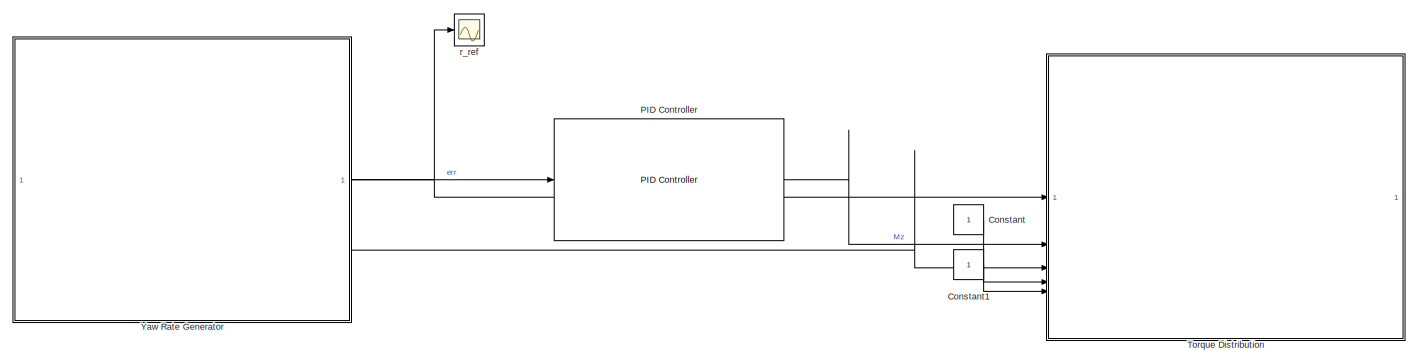
[diagram: root canvas - part 1/3, full width, top band]
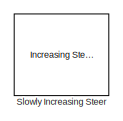
[diagram: root canvas - part 2/3, top left region]
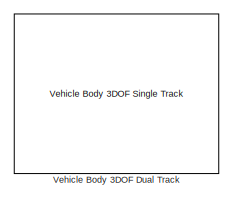
[diagram: root canvas - part 3/3, bottom left region]
MODEL slx_e92ca60e5d35
KIND model
CONFIG AbsTol = auto
CONFIG EnableMultiTasking = off
CONFIG FixedStep = auto
CONFIG MaxStep = auto
CONFIG MinStep = auto
CONFIG RelTol = 1e-3
CONFIG SampleTimeConstraint = Unconstrained
CONFIG SolverName = VariableStepAuto
CONFIG StartTime = 0.0
CONFIG StopTime = 10.0
BLOCK [Constant] Constant
BLOCK [Constant] Constant1
BLOCK [Reference] PID Controller  REF=slpidlib/PID Controller
  LibrarySourceBlock = simulink/Continuous/PID Controller
  SourceBlock = slpidlib/PID Controller
  SourceType = PID 1dof
BLOCK [Reference] Slowly Increasing Steer  REF=vehdynlibscenariocommon/Increasing Steer Signal Input
  LibrarySourceBlock = vehdynlibscenario/Slowly Increasing Steer
  SourceBlock = vehdynlibscenariocommon/Increasing Steer Signal Input
  SourceType = Increasing Steer
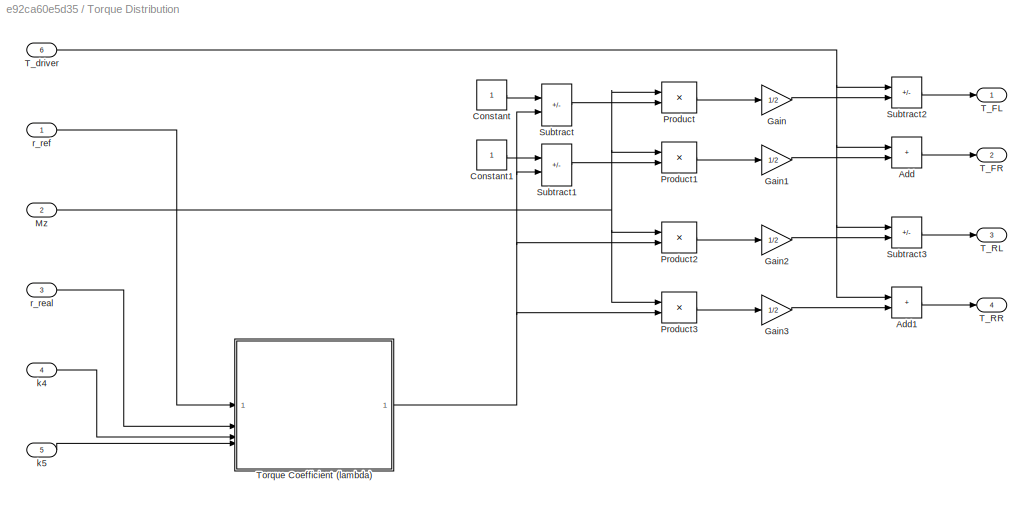
BLOCK [SubSystem] Torque Distribution
BLOCK [Sum] Torque Distribution/Add
  IconShape = rectangular
BLOCK [Sum] Torque Distribution/Add1
  IconShape = rectangular
BLOCK [Constant] Torque Distribution/Constant
BLOCK [Constant] Torque Distribution/Constant1
BLOCK [Gain] Torque Distribution/Gain
  Gain = 1/2
BLOCK [Gain] Torque Distribution/Gain1
  Gain = 1/2
BLOCK [Gain] Torque Distribution/Gain2
  Gain = 1/2
BLOCK [Gain] Torque Distribution/Gain3
  Gain = 1/2
BLOCK [Inport] Torque Distribution/Mz
  Port = 2
BLOCK [Product] Torque Distribution/Product
BLOCK [Product] Torque Distribution/Product1
BLOCK [Product] Torque Distribution/Product2
BLOCK [Product] Torque Distribution/Product3
BLOCK [Sum] Torque Distribution/Subtract
  IconShape = rectangular
  Inputs = +-
BLOCK [Sum] Torque Distribution/Subtract1
  IconShape = rectangular
  Inputs = +-
BLOCK [Sum] Torque Distribution/Subtract2
  IconShape = rectangular
  Inputs = +-
BLOCK [Sum] Torque Distribution/Subtract3
  IconShape = rectangular
  Inputs = +-
BLOCK [Outport] Torque Distribution/T_FL
BLOCK [Outport] Torque Distribution/T_FR
  Port = 2
BLOCK [Outport] Torque Distribution/T_RL
  Port = 3
BLOCK [Outport] Torque Distribution/T_RR
  Port = 4
BLOCK [Inport] Torque Distribution/T_driver
  Port = 6
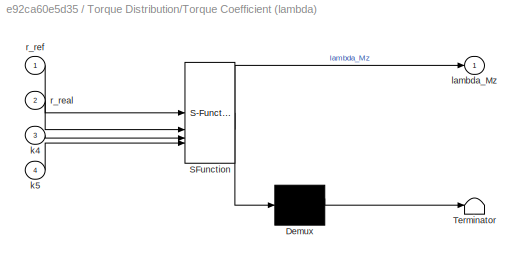
BLOCK [SubSystem] Torque Distribution/Torque Coefficient (lambda)
  ErrorFcn = Stateflow.Translate.translate
  PermitHierarchicalResolution = ExplicitOnly
  SFBlockType = MATLAB Function
  TreatAsAtomicUnit = on
BLOCK [Demux] Torque Distribution/Torque Coefficient (lambda)/ Demux 
  Outputs = 1
BLOCK [S-Function] Torque Distribution/Torque Coefficient (lambda)/ SFunction 
  EnableBusSupport = off
  FunctionName = sf_sfun
  PortCounts = [4 2]
  SFcnIsStateOwnerBlock = off
  SFunctionDeploymentMode = off
  Tag = Stateflow S-Function 3
BLOCK [Terminator] Torque Distribution/Torque Coefficient (lambda)/ Terminator 
BLOCK [Inport] Torque Distribution/Torque Coefficient (lambda)/k4
  Port = 3
BLOCK [Inport] Torque Distribution/Torque Coefficient (lambda)/k5
  Port = 4
BLOCK [Outport] Torque Distribution/Torque Coefficient (lambda)/lambda_Mz
BLOCK [Inport] Torque Distribution/Torque Coefficient (lambda)/r_real
  Port = 2
BLOCK [Inport] Torque Distribution/Torque Coefficient (lambda)/r_ref
BLOCK [Inport] Torque Distribution/k4
  Port = 4
BLOCK [Inport] Torque Distribution/k5
  Port = 5
BLOCK [Inport] Torque Distribution/r_real
  Port = 3
BLOCK [Inport] Torque Distribution/r_ref
BLOCK [Reference] Vehicle Body 3DOF Dual Track  REF=autolibshared/Vehicle Body 3DOF Single Track
  LibrarySourceBlock = vehdynlibeom/Vehicle Body 3DOF Dual Track
  SourceBlock = autolibshared/Vehicle Body 3DOF Single Track
  SourceType = Vehicle Body 3DOF Lateral
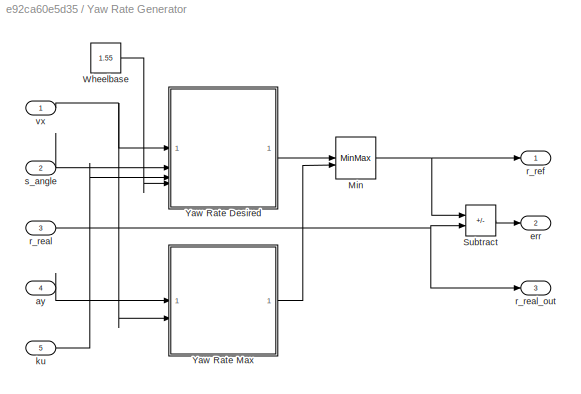
BLOCK [SubSystem] Yaw Rate Generator
BLOCK [MinMax] Yaw Rate Generator/Min
  Inputs = 2
BLOCK [Sum] Yaw Rate Generator/Subtract
  IconShape = rectangular
  Inputs = +-
BLOCK [Constant] Yaw Rate Generator/Wheelbase
  Value = 1.55
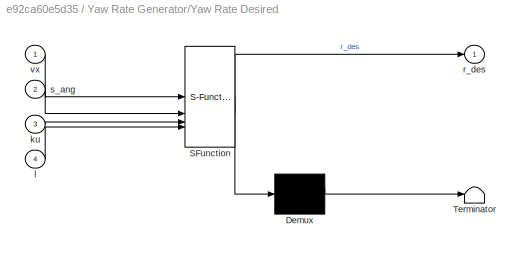
BLOCK [SubSystem] Yaw Rate Generator/Yaw Rate Desired
  ErrorFcn = Stateflow.Translate.translate
  PermitHierarchicalResolution = ExplicitOnly
  SFBlockType = MATLAB Function
  TreatAsAtomicUnit = on
BLOCK [Demux] Yaw Rate Generator/Yaw Rate Desired/ Demux 
  Outputs = 1
BLOCK [S-Function] Yaw Rate Generator/Yaw Rate Desired/ SFunction 
  EnableBusSupport = off
  FunctionName = sf_sfun
  PortCounts = [4 2]
  SFcnIsStateOwnerBlock = off
  SFunctionDeploymentMode = off
  Tag = Stateflow S-Function 2
BLOCK [Terminator] Yaw Rate Generator/Yaw Rate Desired/ Terminator 
BLOCK [Inport] Yaw Rate Generator/Yaw Rate Desired/ku
  Port = 3
BLOCK [Inport] Yaw Rate Generator/Yaw Rate Desired/l
  Port = 4
BLOCK [Outport] Yaw Rate Generator/Yaw Rate Desired/r_des
BLOCK [Inport] Yaw Rate Generator/Yaw Rate Desired/s_ang
  Port = 2
BLOCK [Inport] Yaw Rate Generator/Yaw Rate Desired/vx
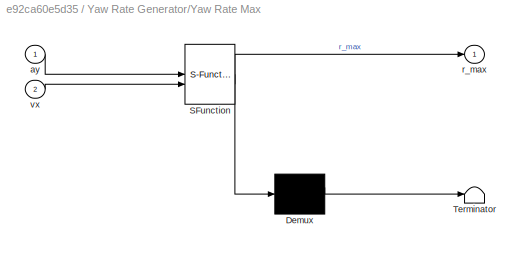
BLOCK [SubSystem] Yaw Rate Generator/Yaw Rate Max
  ErrorFcn = Stateflow.Translate.translate
  PermitHierarchicalResolution = ExplicitOnly
  SFBlockType = MATLAB Function
  TreatAsAtomicUnit = on
BLOCK [Demux] Yaw Rate Generator/Yaw Rate Max/ Demux 
  Outputs = 1
BLOCK [S-Function] Yaw Rate Generator/Yaw Rate Max/ SFunction 
  EnableBusSupport = off
  FunctionName = sf_sfun
  PortCounts = [2 2]
  SFcnIsStateOwnerBlock = off
  SFunctionDeploymentMode = off
  Tag = Stateflow S-Function 1
BLOCK [Terminator] Yaw Rate Generator/Yaw Rate Max/ Terminator 
BLOCK [Inport] Yaw Rate Generator/Yaw Rate Max/ay
BLOCK [Outport] Yaw Rate Generator/Yaw Rate Max/r_max
BLOCK [Inport] Yaw Rate Generator/Yaw Rate Max/vx
  Port = 2
BLOCK [Inport] Yaw Rate Generator/ay
  Port = 4
BLOCK [Outport] Yaw Rate Generator/err
  Port = 2
BLOCK [Inport] Yaw Rate Generator/ku
  Port = 5
BLOCK [Inport] Yaw Rate Generator/r_real
  Port = 3
BLOCK [Outport] Yaw Rate Generator/r_real_out
  Port = 3
BLOCK [Outport] Yaw Rate Generator/r_ref
BLOCK [Inport] Yaw Rate Generator/s_angle
  Port = 2
BLOCK [Inport] Yaw Rate Generator/vx
BLOCK [Scope] r_ref
  Floating = off
  NumInputPorts = 1
  ScopeSpecificationString = Simulink.scopes.TimeScopeBlockCfg('CurrentConfiguration', extmgr.ConfigurationSet(extmgr.Configuration('Core','General UI',true),extmgr.Configuration('Core','Source UI',true),extmgr.Configuration('Sources','WiredSimulink',true),extmgr.Configuration('Visuals','Time Domain',true,'SerializedDisplays',{struct('MinYLimReal','-10','MaxYLimReal','10','YLabelReal','','MinYLimMag','0','MaxYLimMag','10','Le...<+840ch>
LINE Constant1:1 -> Torque Distribution:5
LINE Constant:1 -> Torque Distribution:4
LINE PID Controller:1 -> Torque Distribution:2
LINE Torque Distribution/Add1:1 -> Torque Distribution/T_RR:1
LINE Torque Distribution/Add:1 -> Torque Distribution/T_FR:1
LINE Torque Distribution/Constant1:1 -> Torque Distribution/Subtract1:1
LINE Torque Distribution/Constant:1 -> Torque Distribution/Subtract:1
LINE Torque Distribution/Gain1:1 -> Torque Distribution/Add:2
LINE Torque Distribution/Gain2:1 -> Torque Distribution/Subtract3:2
LINE Torque Distribution/Gain3:1 -> Torque Distribution/Add1:2
LINE Torque Distribution/Gain:1 -> Torque Distribution/Subtract2:2
NET Torque Distribution/Mz:1 -> Torque Distribution/Product1:1, Torque Distribution/Product2:1, Torque Distribution/Product3:1, Torque Distribution/Product:1
LINE Torque Distribution/Product1:1 -> Torque Distribution/Gain1:1
LINE Torque Distribution/Product2:1 -> Torque Distribution/Gain2:1
LINE Torque Distribution/Product3:1 -> Torque Distribution/Gain3:1
LINE Torque Distribution/Product:1 -> Torque Distribution/Gain:1
LINE Torque Distribution/Subtract1:1 -> Torque Distribution/Product1:2
LINE Torque Distribution/Subtract2:1 -> Torque Distribution/T_FL:1
LINE Torque Distribution/Subtract3:1 -> Torque Distribution/T_RL:1
LINE Torque Distribution/Subtract:1 -> Torque Distribution/Product:2
NET Torque Distribution/T_driver:1 -> Torque Distribution/Add1:1, Torque Distribution/Add:1, Torque Distribution/Subtract2:1, Torque Distribution/Subtract3:1
NET Torque Distribution/Torque Coefficient (lambda):1 -> Torque Distribution/Product2:2, Torque Distribution/Product3:2, Torque Distribution/Subtract1:2, Torque Distribution/Subtract:2
LINE Torque Distribution/k4:1 -> Torque Distribution/Torque Coefficient (lambda):3
LINE Torque Distribution/k5:1 -> Torque Distribution/Torque Coefficient (lambda):4
LINE Torque Distribution/r_real:1 -> Torque Distribution/Torque Coefficient (lambda):2
LINE Torque Distribution/r_ref:1 -> Torque Distribution/Torque Coefficient (lambda):1
NET Yaw Rate Generator/Min:1 -> Yaw Rate Generator/Subtract:1, Yaw Rate Generator/r_ref:1
LINE Yaw Rate Generator/Subtract:1 -> Yaw Rate Generator/err:1
LINE Yaw Rate Generator/Wheelbase:1 -> Yaw Rate Generator/Yaw Rate Desired:4
LINE Yaw Rate Generator/Yaw Rate Desired:1 -> Yaw Rate Generator/Min:1
LINE Yaw Rate Generator/Yaw Rate Max:1 -> Yaw Rate Generator/Min:2
LINE Yaw Rate Generator/ay:1 -> Yaw Rate Generator/Yaw Rate Max:1
LINE Yaw Rate Generator/ku:1 -> Yaw Rate Generator/Yaw Rate Desired:3
NET Yaw Rate Generator/r_real:1 -> Yaw Rate Generator/Subtract:2, Yaw Rate Generator/r_real_out:1
LINE Yaw Rate Generator/s_angle:1 -> Yaw Rate Generator/Yaw Rate Desired:2
NET Yaw Rate Generator/vx:1 -> Yaw Rate Generator/Yaw Rate Desired:1, Yaw Rate Generator/Yaw Rate Max:2
NET Yaw Rate Generator:1 -> Torque Distribution:1, r_ref:1
LINE Yaw Rate Generator:2 -> PID Controller:1
LINE Yaw Rate Generator:3 -> Torque Distribution:3
note: NET lines group one-source signal fan-out (src -> all destinations, sorted); 1:1 wires keep LINE
CHART Yaw Rate Generator/Yaw Rate Max states=1 transitions=1
  STATE_LABEL 'eML_blk_kernel()'
  STATE_LABEL 'SCRIPT:\nfunction r_max = yaw_rate_max(ay, vx)\n\nr_max = abs(ay, vx);'
CHART Yaw Rate Generator/Yaw Rate Desired states=1 transitions=1
  STATE_LABEL 'eML_blk_kernel()'
  STATE_LABEL 'SCRIPT:\nfunction r_des = yaw_rate_des(vx, s_ang, ku, l)\n\nr_des = (vx * s_ang) / (l + ku * (vx ^ 2));\n'
CHART Torque Distribution/Torque Coefficient (lambda) states=1 transitions=1
  STATE_LABEL 'eML_blk_kernel()'
  STATE_LABEL 'SCRIPT:\nfunction lambda_Mz = torque_lambda(r_ref, r_real, k4, k5)\n\nlambda_Mz = (1 / (k5 - k4)) * (abs(r_ref) - abs(r_real) - k4);\n\nif lambda_Mz <= k4\n    lambda_Mz = 0;\nelseif (lambda_Mz >= k5)\n    lambda_Mz = 1;\nend\n\n'
CHART  states=0 transitions=0
CHART  states=0 transitions=0
CHART  states=0 transitions=0
